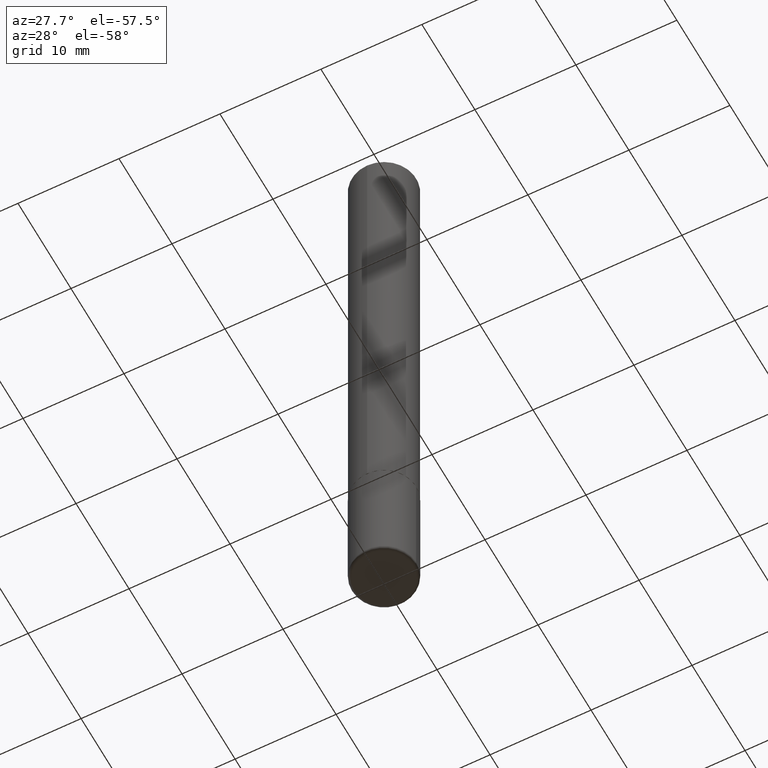
[diagram: clean part render]
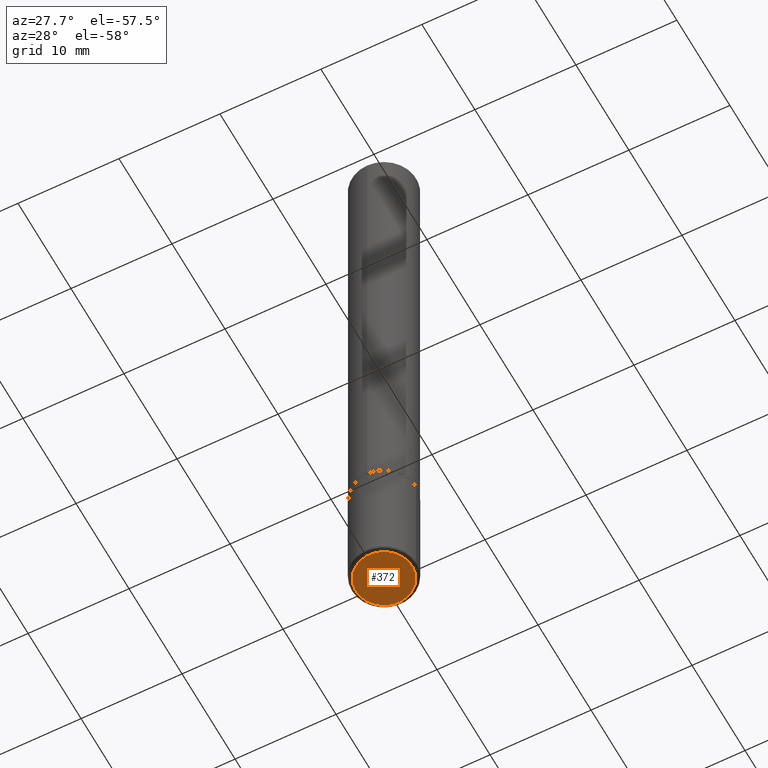
[diagram: same view with one face highlighted and labeled with its STEP entity id]
A machine part, auxiliary view. The second image highlights one B-rep face of the part: STEP entity #372.
In plain terms, the highlighted planar face has unit normal (0, -0, -1).
Its self-contained STEP definition (entity closure, byte-faithful):
#16 = CIRCLE ( 'NONE', #190, 0.1100000000000000283 ) ;
#31 = ORIENTED_EDGE ( 'NONE', *, *, #120, .F. ) ;
#35 = VERTEX_POINT ( 'NONE', #330 ) ;
#47 = DIRECTION ( 'NONE',  ( 2.438088387897960049E-29, -3.491481338843145188E-15, -1.000000000000000000 ) ) ;
#54 = CARTESIAN_POINT ( 'NONE',  ( 6.113672015462842613E-29, -8.728703347107864943E-15, -2.500000000000000000 ) ) ;
#66 = AXIS2_PLACEMENT_3D ( 'NONE', #310, #91, #343 ) ;
#68 = CARTESIAN_POINT ( 'NONE',  ( 6.113672015462842613E-29, -8.728703347107864943E-15, -2.500000000000000000 ) ) ;
#70 = ORIENTED_EDGE ( 'NONE', *, *, #362, .F. ) ;
#91 = DIRECTION ( 'NONE',  ( -2.445468806185136597E-29, 3.491481338843145583E-15, 1.000000000000000000 ) ) ;
#117 = DIRECTION ( 'NONE',  ( -1.000000000000000000, 6.982962677686265922E-15, -4.876176775795935793E-29 ) ) ;
#120 = EDGE_CURVE ( 'NONE', #139, #35, #16, .T. ) ;
#139 = VERTEX_POINT ( 'NONE', #151 ) ;
#147 = PLANE ( 'NONE',  #180 ) ;
#151 = CARTESIAN_POINT ( 'NONE',  ( 0.1100000000000000283, -9.496829241653354912E-15, -2.500000000000000000 ) ) ;
#156 = DIRECTION ( 'NONE',  ( 1.000000000000000000, -6.982962677686269077E-15, 0.000000000000000000 ) ) ;
#180 = AXIS2_PLACEMENT_3D ( 'NONE', #54, #47, #117 ) ;
#189 = DIRECTION ( 'NONE',  ( -2.445468806185136597E-29, 3.491481338843145583E-15, 1.000000000000000000 ) ) ;
#190 = AXIS2_PLACEMENT_3D ( 'NONE', #68, #189, #156 ) ;
#296 = CIRCLE ( 'NONE', #66, 0.1100000000000000283 ) ;
#304 = FACE_OUTER_BOUND ( 'NONE', #418, .T. ) ;
#310 = CARTESIAN_POINT ( 'NONE',  ( 6.113672015462842613E-29, -8.728703347107864943E-15, -2.500000000000000000 ) ) ;
#330 = CARTESIAN_POINT ( 'NONE',  ( -0.1100000000000000283, -7.867629522548422746E-15, -2.500000000000000000 ) ) ;
#343 = DIRECTION ( 'NONE',  ( 1.000000000000000000, -6.982962677686269077E-15, 0.000000000000000000 ) ) ;
#362 = EDGE_CURVE ( 'NONE', #35, #139, #296, .T. ) ;
#372 = ADVANCED_FACE ( 'NONE', ( #304 ), #147, .T. ) ;
#418 = EDGE_LOOP ( 'NONE', ( #31, #70 ) ) ;